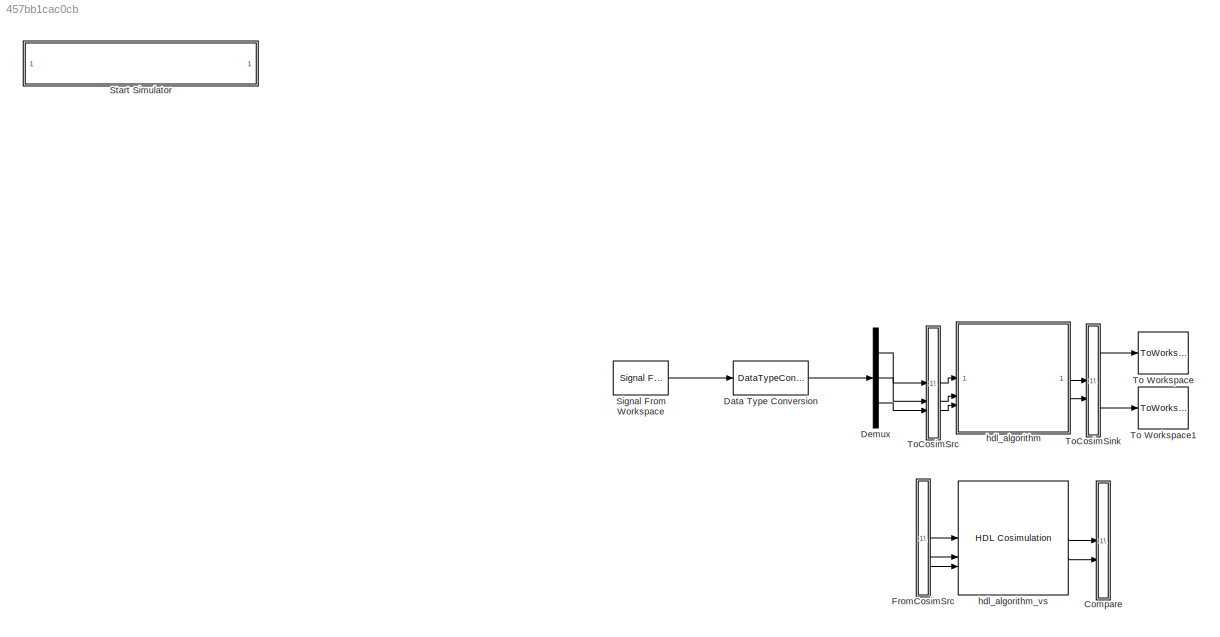
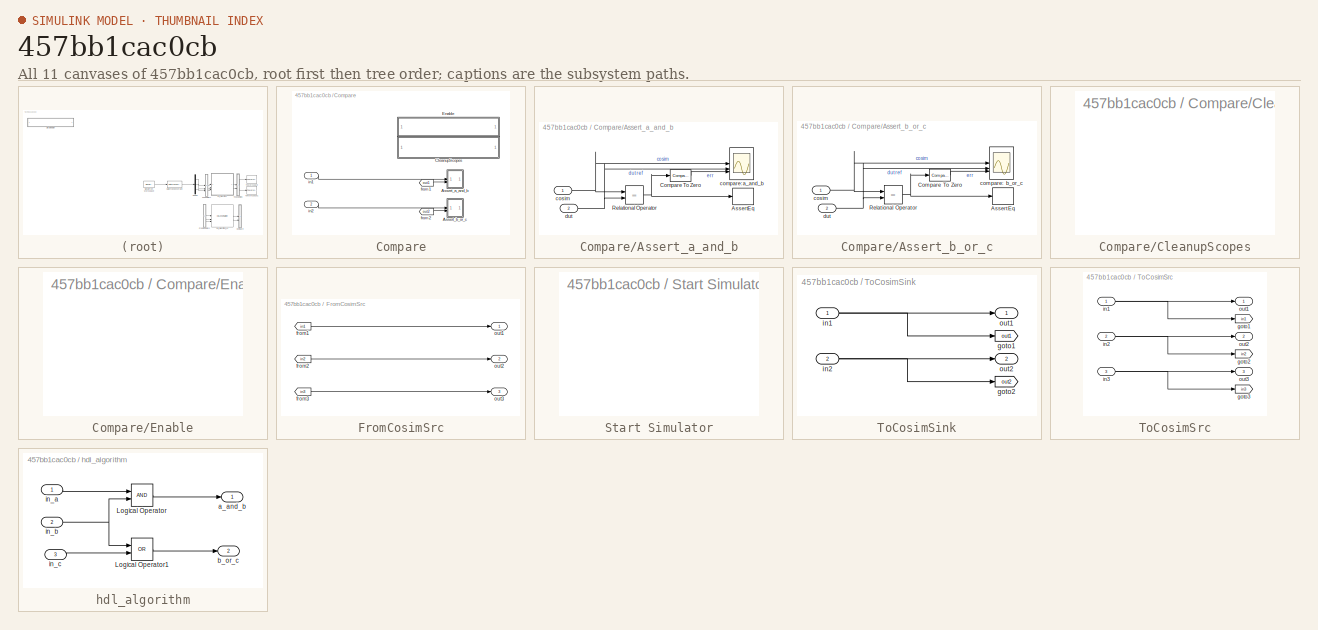
[diagram: thumbnail index - all 11 canvases of the model, root first then tree order]
MODEL slx_457bb1cac0cb
KIND model
CONFIG AbsTol = auto
CONFIG EnableMultiTasking = off
CONFIG FixedStep = auto
CONFIG MaxStep = auto
CONFIG MinStep = auto
CONFIG RelTol = 1e-3
CONFIG SampleTimeConstraint = Unconstrained
CONFIG SolverName = VariableStepAuto
CONFIG StartTime = 0.0
CONFIG StopTime = 10.0
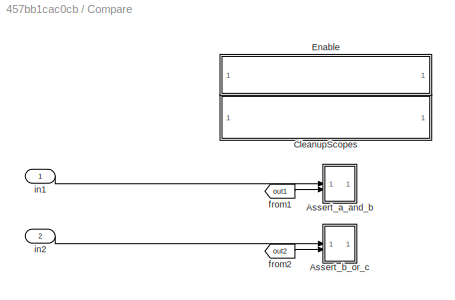
BLOCK [SubSystem] Compare
BLOCK [SubSystem] Compare/Assert_a_and_b
  LibrarySourceBlock = hdlmdlgenlib/AssertEq
BLOCK [Assertion] Compare/Assert_a_and_b/AssertEq
BLOCK [Reference] Compare/Assert_a_and_b/Compare To Zero  REF=simulink/Logic and Bit
Operations/Compare
To Zero
  LibrarySourceBlock = hdlmdlgenlib/AssertEq/Compare\nTo Zero
  SourceBlock = simulink/Logic and Bit\nOperations/Compare\nTo Zero
  SourceType = Compare To Zero
BLOCK [RelationalOperator] Compare/Assert_a_and_b/Relational Operator
  InputSameDT = off
  Operator = ==
  OutDataTypeStr = boolean
BLOCK [Scope] Compare/Assert_a_and_b/compare: a_and_b
  Floating = off
  NumInputPorts = 3
  ScopeSpecificationString = Simulink.scopes.TimeScopeBlockCfg('CurrentConfiguration', extmgr.ConfigurationSet(extmgr.Configuration('Core','General UI',true,'MessageLogAutoOpenMode','for warn/fail messages','ShowCloseAll',true,'ShowBringAllForward',true),extmgr.Configuration('Core','Source UI',true,'PlaybackToolbar',true),extmgr.Configuration('Sources','WiredSimulink',true,'PointsPerSignal',50000,'DataLoggingDecimation','1','...<+3310ch>
BLOCK [Inport] Compare/Assert_a_and_b/cosim
BLOCK [Inport] Compare/Assert_a_and_b/dut
  Port = 2
BLOCK [SubSystem] Compare/Assert_b_or_c
  LibrarySourceBlock = hdlmdlgenlib/AssertEq
BLOCK [Assertion] Compare/Assert_b_or_c/AssertEq
BLOCK [Reference] Compare/Assert_b_or_c/Compare To Zero  REF=simulink/Logic and Bit
Operations/Compare
To Zero
  LibrarySourceBlock = hdlmdlgenlib/AssertEq/Compare\nTo Zero
  SourceBlock = simulink/Logic and Bit\nOperations/Compare\nTo Zero
  SourceType = Compare To Zero
BLOCK [RelationalOperator] Compare/Assert_b_or_c/Relational Operator
  InputSameDT = off
  Operator = ==
  OutDataTypeStr = boolean
BLOCK [Scope] Compare/Assert_b_or_c/compare: b_or_c
  Floating = off
  NumInputPorts = 3
  ScopeSpecificationString = Simulink.scopes.TimeScopeBlockCfg('CurrentConfiguration', extmgr.ConfigurationSet(extmgr.Configuration('Core','General UI',true,'MessageLogAutoOpenMode','for warn/fail messages','ShowCloseAll',true,'ShowBringAllForward',true),extmgr.Configuration('Core','Source UI',true,'PlaybackToolbar',true),extmgr.Configuration('Sources','WiredSimulink',true,'PointsPerSignal',50000,'DataLoggingDecimation','1','...<+3310ch>
BLOCK [Inport] Compare/Assert_b_or_c/cosim
BLOCK [Inport] Compare/Assert_b_or_c/dut
  Port = 2
BLOCK [SubSystem] Compare/CleanupScopes
  OpenFcn = blkName = gcb; %self block\nidx = regexp(blkName, '/CleanupScopes$', 'once');\nblkParent = blkName(1:idx-1);\nblks=find_system(blkParent, 'LookUnderMasks', 'all','blocktype', 'Scope');\nfor itr = 1:length(blks)\n	 hScopeCfg = get_param(blks{itr},'ScopeConfiguration');\n	 hScopeCfg.Visible = ~ hScopeCfg.Visible;\nend\ndrawnow;
BLOCK [SubSystem] Compare/Enable
  OpenFcn = blkName = gcb;\nidx = regexp(blkName, '/Enable$', 'once');\nblkParent = blkName(1:idx-1);\nblks=find_system(blkParent, 'LookUnderMasks', 'all','blocktype', 'Assertion');\ne = get_param(blks{1}, 'Enabled');\nif strcmp(e, 'on'), f= 'off';, else, f = 'on';, end\nfor ii=1:length(blks), set_param(blks{ii}, 'Enabled', f);, end\nset_param(gcb, 'MaskDisplay',['fprintf(message(''hdlcoder:cosim:vnl_dblclick_assert...<+47ch>
BLOCK [From] Compare/from1
  GotoTag = out1
  TagVisibility = global
BLOCK [From] Compare/from2
  GotoTag = out2
  TagVisibility = global
BLOCK [Inport] Compare/in1
BLOCK [Inport] Compare/in2
  Port = 2
BLOCK [DataTypeConversion] Data Type Conversion
  OutDataTypeStr = boolean
  RndMeth = Floor
  SaturateOnIntegerOverflow = off
BLOCK [Demux] Demux
  Outputs = 3
BLOCK [SubSystem] FromCosimSrc
BLOCK [From] FromCosimSrc/from1
  GotoTag = in1
  TagVisibility = global
BLOCK [From] FromCosimSrc/from2
  GotoTag = in2
  TagVisibility = global
BLOCK [From] FromCosimSrc/from3
  GotoTag = in3
  TagVisibility = global
BLOCK [Outport] FromCosimSrc/out1
BLOCK [Outport] FromCosimSrc/out2
  Port = 2
BLOCK [Outport] FromCosimSrc/out3
  Port = 3
BLOCK [Reference] Signal From Workspace  REF=dspsrcs4/Signal From
Workspace
  SourceBlock = dspsrcs4/Signal From\nWorkspace
  SourceType = Signal From Workspace
BLOCK [SubSystem] Start Simulator
  OpenFcn = cosimDirName = pwd;\ncd 'hdl_prj/hdlsrc/HDLExampleFIL';\n[s,r] = system('vivado -mode batch -source gm_HDLExampleFIL_vs.tcl','-echo');\ncd (cosimDirName);\nclear cosimDirName;\nif s\n   error('Failed to create Vivado HDL design DLL using script gm_HDLExampleFIL_vs.tcl.');\nend
BLOCK [ToWorkspace] To Workspace
  MaxDataPoints = inf
  SampleTime = -1
  Save2DSignal = 2-D array (concatenate along first dimension)
  SaveFormat = Timeseries
  VariableName = AandB
BLOCK [ToWorkspace] To Workspace1
  MaxDataPoints = inf
  SampleTime = -1
  Save2DSignal = 2-D array (concatenate along first dimension)
  SaveFormat = Timeseries
  VariableName = BorC
BLOCK [SubSystem] ToCosimSink
BLOCK [Goto] ToCosimSink/goto1
  GotoTag = out1
  TagVisibility = global
BLOCK [Goto] ToCosimSink/goto2
  GotoTag = out2
  TagVisibility = global
BLOCK [Inport] ToCosimSink/in1
BLOCK [Inport] ToCosimSink/in2
  Port = 2
BLOCK [Outport] ToCosimSink/out1
BLOCK [Outport] ToCosimSink/out2
  Port = 2
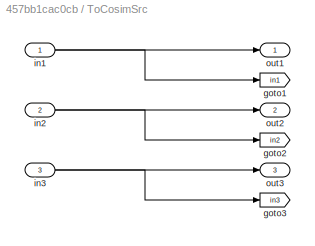
BLOCK [SubSystem] ToCosimSrc
BLOCK [Goto] ToCosimSrc/goto1
  GotoTag = in1
  TagVisibility = global
BLOCK [Goto] ToCosimSrc/goto2
  GotoTag = in2
  TagVisibility = global
BLOCK [Goto] ToCosimSrc/goto3
  GotoTag = in3
  TagVisibility = global
BLOCK [Inport] ToCosimSrc/in1
BLOCK [Inport] ToCosimSrc/in2
  Port = 2
BLOCK [Inport] ToCosimSrc/in3
  Port = 3
BLOCK [Outport] ToCosimSrc/out1
BLOCK [Outport] ToCosimSrc/out2
  Port = 2
BLOCK [Outport] ToCosimSrc/out3
  Port = 3
BLOCK [SubSystem] hdl_algorithm
BLOCK [Logic] hdl_algorithm/Logical Operator
  AllPortsSameDT = off
  OutDataTypeStr = boolean
BLOCK [Logic] hdl_algorithm/Logical Operator1
  AllPortsSameDT = off
  Operator = OR
  OutDataTypeStr = boolean
BLOCK [Outport] hdl_algorithm/a_and_b
BLOCK [Outport] hdl_algorithm/b_or_c
  Port = 2
BLOCK [Inport] hdl_algorithm/in_a
BLOCK [Inport] hdl_algorithm/in_b
  Port = 2
BLOCK [Inport] hdl_algorithm/in_c
  Port = 3
BLOCK [Reference] hdl_algorithm_vs  REF=vivadosimlib/HDL Cosimulation
  SourceBlock = vivadosimlib/HDL Cosimulation
  SourceType = Simulink and Vivado Simulator Cosimulation
  UserDataPersistent = on
LINE Compare/Assert_a_and_b/Compare To Zero:1 -> Compare/Assert_a_and_b/compare: a_and_b:3
NET Compare/Assert_a_and_b/Relational Operator:1 -> Compare/Assert_a_and_b/AssertEq:1, Compare/Assert_a_and_b/Compare To Zero:1
NET Compare/Assert_a_and_b/cosim:1 -> Compare/Assert_a_and_b/Relational Operator:1, Compare/Assert_a_and_b/compare: a_and_b:1
NET Compare/Assert_a_and_b/dut:1 -> Compare/Assert_a_and_b/Relational Operator:2, Compare/Assert_a_and_b/compare: a_and_b:2
LINE Compare/Assert_b_or_c/Compare To Zero:1 -> Compare/Assert_b_or_c/compare: b_or_c:3
NET Compare/Assert_b_or_c/Relational Operator:1 -> Compare/Assert_b_or_c/AssertEq:1, Compare/Assert_b_or_c/Compare To Zero:1
NET Compare/Assert_b_or_c/cosim:1 -> Compare/Assert_b_or_c/Relational Operator:1, Compare/Assert_b_or_c/compare: b_or_c:1
NET Compare/Assert_b_or_c/dut:1 -> Compare/Assert_b_or_c/Relational Operator:2, Compare/Assert_b_or_c/compare: b_or_c:2
LINE Compare/from1:1 -> Compare/Assert_a_and_b:2
LINE Compare/from2:1 -> Compare/Assert_b_or_c:2
LINE Compare/in1:1 -> Compare/Assert_a_and_b:1
LINE Compare/in2:1 -> Compare/Assert_b_or_c:1
LINE Data Type Conversion:1 -> Demux:1
LINE Demux:1 -> ToCosimSrc:1
LINE Demux:2 -> ToCosimSrc:2
LINE Demux:3 -> ToCosimSrc:3
LINE FromCosimSrc/from1:1 -> FromCosimSrc/out1:1
LINE FromCosimSrc/from2:1 -> FromCosimSrc/out2:1
LINE FromCosimSrc/from3:1 -> FromCosimSrc/out3:1
LINE FromCosimSrc:1 -> hdl_algorithm_vs:1
LINE FromCosimSrc:2 -> hdl_algorithm_vs:2
LINE FromCosimSrc:3 -> hdl_algorithm_vs:3
LINE Signal From Workspace:1 -> Data Type Conversion:1
NET ToCosimSink/in1:1 -> ToCosimSink/goto1:1, ToCosimSink/out1:1
NET ToCosimSink/in2:1 -> ToCosimSink/goto2:1, ToCosimSink/out2:1
LINE ToCosimSink:1 -> To Workspace:1
LINE ToCosimSink:2 -> To Workspace1:1
NET ToCosimSrc/in1:1 -> ToCosimSrc/goto1:1, ToCosimSrc/out1:1
NET ToCosimSrc/in2:1 -> ToCosimSrc/goto2:1, ToCosimSrc/out2:1
NET ToCosimSrc/in3:1 -> ToCosimSrc/goto3:1, ToCosimSrc/out3:1
LINE ToCosimSrc:1 -> hdl_algorithm:1
LINE ToCosimSrc:2 -> hdl_algorithm:2
LINE ToCosimSrc:3 -> hdl_algorithm:3
LINE hdl_algorithm/Logical Operator1:1 -> hdl_algorithm/b_or_c:1
LINE hdl_algorithm/Logical Operator:1 -> hdl_algorithm/a_and_b:1
LINE hdl_algorithm/in_a:1 -> hdl_algorithm/Logical Operator:1
NET hdl_algorithm/in_b:1 -> hdl_algorithm/Logical Operator1:1, hdl_algorithm/Logical Operator:2
LINE hdl_algorithm/in_c:1 -> hdl_algorithm/Logical Operator1:2
LINE hdl_algorithm:1 -> ToCosimSink:1
LINE hdl_algorithm:2 -> ToCosimSink:2
LINE hdl_algorithm_vs:1 -> Compare:1
LINE hdl_algorithm_vs:2 -> Compare:2
note: NET lines group one-source signal fan-out (src -> all destinations, sorted); 1:1 wires keep LINE
